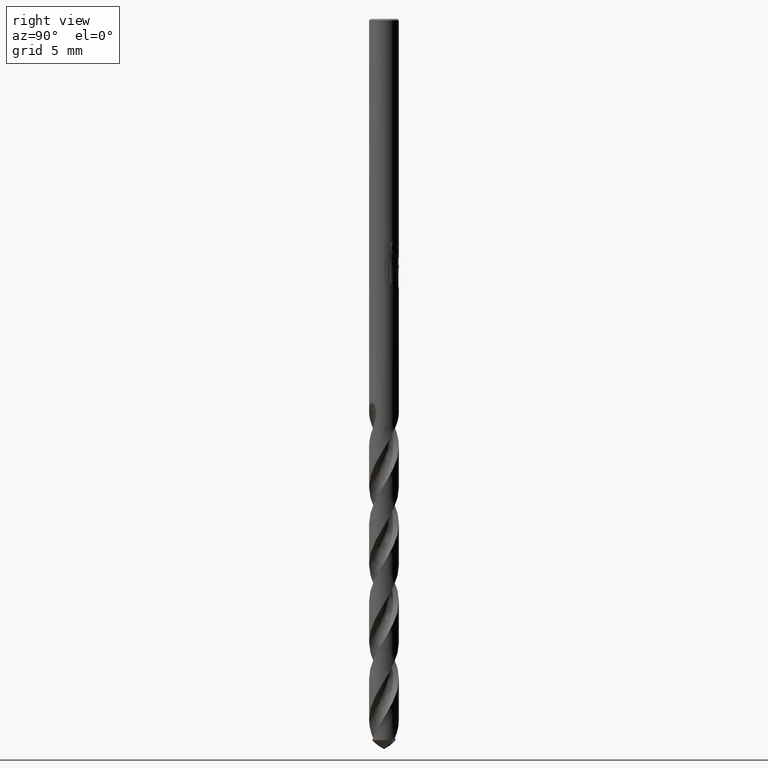
[diagram: clean part render]
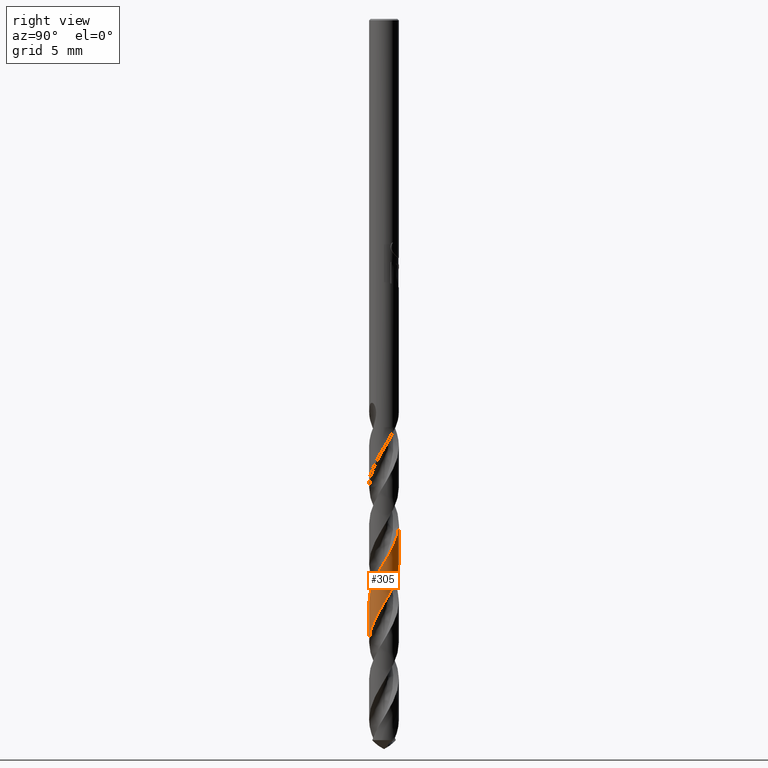
[diagram: same view with one face highlighted and labeled with its STEP entity id]
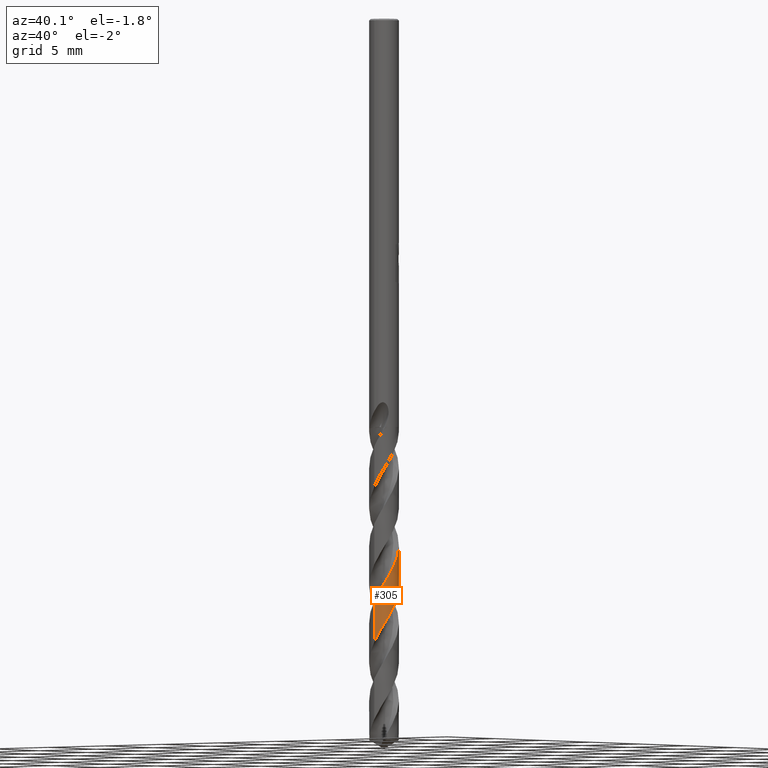
[diagram: same view with one face highlighted and labeled with its STEP entity id]
A machine part, right view. The second image highlights one B-rep face of the part: STEP entity #305.
A second angle (auxiliary view) of the same face is appended — the face is thin or edge-on in the first view.
In plain terms, the highlighted conical surface has half-angle 0 deg.
Its self-contained STEP definition (entity closure, byte-faithful):
#305=ADVANCED_FACE('',(#838),#839,.T.);
#349=EDGE_CURVE('',#419,#521,#887,.T.);
#419=VERTEX_POINT('',#963);
#521=VERTEX_POINT('',#1071);
#543=EDGE_CURVE('',#567,#521,#1096,.T.);
#545=VERTEX_POINT('',#1098);
#567=VERTEX_POINT('',#1122);
#613=EDGE_CURVE('',#419,#545,#1170,.T.);
#623=EDGE_CURVE('',#567,#545,#1180,.T.);
#838=FACE_OUTER_BOUND('',#1415,.T.);
#839=CONICAL_SURFACE('',#1416,0.99995,4.76209992157318E-006);
#887=B_SPLINE_CURVE_WITH_KNOTS('',3,(#2114,#2115,#2116,#2117,#2118,#2119,#2120,#2121,#2122,#2123,#2124,#2125,#2126,#2127,#2128,#2129,#2130,#2131,#2132,#2133,#2134,#2135,#2136,#2137,#2138,#2139,#2140,#2141,#2142,#2143,#2144,#2145,#2146,#2147,#2148,#2149,#2150,#2151,#2152,#2153,#2154,#2155,#2156,#2157,#2158,#2159,#2160,#2161,#2162,#2163,#2164,#2165,#2166,#2167,#2168,#2169,#2170,#2171,#2172,#2173,#2174,#2175,#2176,#2177,#2178,#2179,#2180,#2181,#2182,#2183,#2184,#2185,#2186,#2187,#2188,#2189,#2190,#2191,#2192,#2193,#2194,#2195,#2196,#2197,#2198,#2199,#2200,#2201,#2202,#2203,#2204,#2205,#2206,#2207,#2208,#2209,#2210,#2211,#2212,#2213,#2214,#2215,#2216,#2217,#2218,#2219,#2220,#2221,#2222,#2223,#2224,#2225,#2226,#2227,#2228,#2229,#2230,#2231,#2232,#2233,#2234,#2235,#2236,#2237,#2238,#2239,#2240,#2241,#2242,#2243,#2244,#2245,#2246,#2247,#2248,#2249,#2250,#2251,#2252,#2253,#2254,#2255,#2256,#2257,#2258,#2259,#2260,#2261,#2262,#2263,#2264,#2265,#2266,#2267,#2268,#2269,#2270,#2271,#2272,#2273,#2274,#2275),.UNSPECIFIED.,.F.,.F.,(4,2,2,2,2,2,2,2,2,2,2,2,2,2,2,2,2,2,2,2,2,2,2,2,2,2,2,2,2,2,2,2,2,2,2,2,2,2,2,2,2,2,2,2,2,2,2,2,2,2,2,2,2,2,2,2,2,2,2,2,2,2,2,2,2,2,2,2,2,2,2,2,2,2,2,2,2,2,2,2,4),(0.0,0.14056445565789,0.70591097276964,0.96913414407224,1.35393639490221,1.53594426473165,1.75308899507386,2.45448441391391,2.49523314449115,3.09830556356319,3.34016229741678,4.03058293586888,4.11538521270163,4.75953051353945,4.95781017869321,5.33016819058838,5.51299303691114,5.73848299923617,6.43810748119261,6.48001934676042,7.07575573852752,7.59217082503069,7.95721431112487,8.1574282753078,8.5306016233523,8.71438195715672,9.09848747242897,9.45959928978228,10.0113818150699,10.3773913943773,10.5676570043714,10.9532640893197,11.1367819856449,11.3497098997245,12.0661004696467,12.1064505335553,12.726093223443,13.1069669155192,13.4657956349338,13.9984171846253,14.3614655701048,14.5547068987883,14.931720620119,15.1141061051612,15.3324123963405,16.0361911712063,16.0772771579795,16.6808372688612,16.9232670663173,17.6134568395554,17.6988893198067,18.341618251319,18.5429116142774,18.9133920798893,19.0967366868528,19.48015514132,19.8383243826544,20.4003260823509,20.7656803249435,20.9518639090606,21.3422108349898,21.5251608299393,21.7342002215273,22.1053366182177,22.4338499458551,22.4534432325942,23.0081581119767,23.818086887952,23.9479202507916,24.0768839704688,24.1632713092801,24.253820072046,24.3949613482949,24.5084439207306,24.5931882163274,24.6441699712527,24.6899113798013,24.7480986676463,24.8668953882066,25.1214071149945,25.4279683467733),.UNSPECIFIED.);
#963=CARTESIAN_POINT('',(-9.09805265695658E-015,-0.999968680696698,-41.8223552276919));
#1071=CARTESIAN_POINT('',(-1.37668220737116E-012,0.999943911893829,-36.6211197901034));
#1096=LINE('',#3858,#3859);
#1098=CARTESIAN_POINT('',(2.15055975215677E-013,-0.999955628579478,-39.0815229403631));
#1122=CARTESIAN_POINT('',(-4.7796150428763E-015,0.999930863154706,-33.8809968741904));
#1170=LINE('',#4911,#4912);
#1180=B_SPLINE_CURVE_WITH_KNOTS('',3,(#4929,#4930,#4931,#4932,#4933,#4934,#4935,#4936,#4937,#4938,#4939,#4940,#4941,#4942,#4943,#4944,#4945,#4946,#4947,#4948,#4949,#4950,#4951,#4952,#4953,#4954,#4955,#4956,#4957,#4958,#4959,#4960,#4961,#4962,#4963,#4964,#4965,#4966,#4967,#4968,#4969,#4970,#4971,#4972,#4973,#4974,#4975,#4976,#4977,#4978,#4979,#4980,#4981,#4982,#4983,#4984,#4985,#4986,#4987,#4988,#4989,#4990,#4991,#4992,#4993,#4994,#4995,#4996,#4997,#4998,#4999,#5000,#5001,#5002,#5003,#5004,#5005,#5006,#5007,#5008,#5009,#5010,#5011,#5012,#5013,#5014,#5015,#5016,#5017,#5018,#5019,#5020,#5021,#5022,#5023,#5024,#5025,#5026,#5027,#5028,#5029,#5030,#5031,#5032,#5033,#5034,#5035,#5036,#5037,#5038,#5039,#5040,#5041,#5042,#5043,#5044,#5045,#5046,#5047,#5048,#5049,#5050,#5051,#5052,#5053,#5054,#5055,#5056,#5057,#5058,#5059,#5060,#5061,#5062,#5063,#5064,#5065,#5066,#5067,#5068,#5069,#5070,#5071,#5072,#5073,#5074,#5075,#5076,#5077,#5078,#5079,#5080,#5081,#5082,#5083,#5084,#5085,#5086,#5087,#5088,#5089,#5090,#5091,#5092,#5093,#5094,#5095,#5096,#5097,#5098,#5099,#5100,#5101,#5102,#5103,#5104,#5105,#5106,#5107,#5108,#5109,#5110,#5111,#5112,#5113,#5114,#5115,#5116,#5117,#5118,#5119,#5120,#5121,#5122,#5123,#5124,#5125,#5126,#5127,#5128,#5129,#5130,#5131,#5132,#5133,#5134,#5135,#5136),.UNSPECIFIED.,.F.,.F.,(4,2,2,2,2,2,2,2,2,2,2,2,2,2,2,2,2,2,2,2,2,2,2,2,2,2,2,2,2,2,2,2,2,2,2,2,2,2,2,2,2,2,2,2,2,2,2,2,2,2,2,2,2,2,2,2,2,2,2,2,2,2,2,2,2,2,2,2,2,2,2,2,2,2,2,2,2,2,2,2,2,2,2,2,2,2,2,2,2,2,2,2,2,2,2,2,2,2,2,2,2,2,2,4),(0.0,0.0700936707221039,0.0892226510524126,0.0981457889618549,0.103952079740004,0.108542523064671,0.1121372120472,0.114929148154714,0.117082761278986,0.118734677882819,0.11999605567832,0.120955781254254,0.121683948629849,0.122235228318834,0.244808956534025,0.273356692096325,0.288902881569685,0.301907756104808,0.317265629030893,0.344957792662925,0.379087246080634,0.424483927096996,0.565257880464543,0.630426924324464,0.679645659381287,0.733076229635632,0.762230183522066,0.835260987369624,1.00572168210188,1.16586772190873,1.18586198660844,1.52860473059939,1.57313578097863,2.03668948888539,2.22334419909769,2.45809738189729,2.94994949795201,3.25617852972792,3.82882204189987,3.9421811139424,4.36113180182372,4.53272234124149,4.8030365088131,5.30942518102981,5.57960125424549,6.13782805124241,6.36981611683585,6.95996496504684,7.01333123767605,7.40013656796781,7.75914312054048,7.78470812533843,8.16817645984559,8.52671430573193,8.5526162155846,8.92982451058583,9.28735404545879,9.3403601943133,9.72935595596873,9.90843376060782,10.2334074145805,10.79855179766,10.9129603506767,11.3259643297397,11.5042434462225,11.7778179351104,12.2838490735066,12.5527397111071,13.1096375043922,13.3416239297602,13.9304492898679,13.9837822566105,14.3695097319484,14.7278664707117,14.7534327605806,15.1354231703315,15.4932376348236,15.5191872452273,15.894238802144,16.2509181949413,16.3042204511424,16.6896128600539,17.0476980621844,17.0604981180586,17.431085650254,18.1507533693551,18.5014193346994,18.7488444866393,19.3177319725448,19.4300520475137,19.8481692411279,20.0188435776733,20.2886523667323,20.7940544165893,21.0619194951941,21.6192684944363,21.8500982765038,22.4371629598591,22.490011114667,22.8779652867805,23.4855014056219,23.7863425921628,23.9382248140074,24.0893070231674),.UNSPECIFIED.);
#1415=EDGE_LOOP('',(#8421,#8422,#8423,#8424));
#1416=AXIS2_PLACEMENT_3D('',#8425,#8426,#8427);
#2114=CARTESIAN_POINT('',(0.738484525051719,0.67427042517015,-48.3991393809724));
#2115=CARTESIAN_POINT('',(0.722199315005533,0.69210627256541,-48.35898905715));
#2116=CARTESIAN_POINT('',(0.705339529610617,0.70927645028774,-48.3187399679762));
#2117=CARTESIAN_POINT('',(0.61772978542461,0.79230819350698,-48.117561982592));
#2118=CARTESIAN_POINT('',(0.538168161692851,0.848412606628382,-47.9591542025126));
#2119=CARTESIAN_POINT('',(0.411158045886165,0.912681508742219,-47.7237100044493));
#2120=CARTESIAN_POINT('',(0.369552527325462,0.930297163590966,-47.6485890662762));
#2121=CARTESIAN_POINT('',(0.264753109744293,0.966557372480458,-47.4645833204485));
#2122=CARTESIAN_POINT('',(0.200442660016674,0.981927470895965,-47.3561282568962));
#2123=CARTESIAN_POINT('',(0.103973603421656,0.99506552730784,-47.1954615719139));
#2124=CARTESIAN_POINT('',(0.0728596298296801,0.997823310659706,-47.1439326218183));
#2125=CARTESIAN_POINT('',(0.00455217296671241,1.00067453909161,-47.0306717324577));
#2126=CARTESIAN_POINT('',(-0.0325771020062908,1.00014922136005,-46.9688059508543));
#2127=CARTESIAN_POINT('',(-0.188959270596308,0.989245724266842,-46.7084358859468));
#2128=CARTESIAN_POINT('',(-0.305707973679285,0.959572063556649,-46.5143929488935));
#2129=CARTESIAN_POINT('',(-0.420677671741312,0.907225690007042,-46.3040624505032));
#2130=CARTESIAN_POINT('',(-0.42695748454567,0.904287404632876,-46.2925092983668));
#2131=CARTESIAN_POINT('',(-0.526094394212668,0.856632316758312,-46.1094570126849));
#2132=CARTESIAN_POINT('',(-0.611614923219035,0.797865416588583,-45.9410527638497));
#2133=CARTESIAN_POINT('',(-0.716885875927187,0.698403557398639,-45.7014017591294));
#2134=CARTESIAN_POINT('',(-0.74515117271641,0.668149737055001,-45.6325083997187));
#2135=CARTESIAN_POINT('',(-0.846306494784768,0.545523237120698,-45.3684316947228));
#2136=CARTESIAN_POINT('',(-0.904506802091092,0.442318284594168,-45.1773920805992));
#2137=CARTESIAN_POINT('',(-0.948239372122956,0.317832728097969,-44.9579148437989));
#2138=CARTESIAN_POINT('',(-0.952722592307638,0.304131180416956,-44.9338834902299));
#2139=CARTESIAN_POINT('',(-0.988806638486166,0.185180527447617,-44.7272045356465));
#2140=CARTESIAN_POINT('',(-1.00316935284506,0.0755265524883106,-44.5482782947742));
#2141=CARTESIAN_POINT('',(-0.998226970862284,-0.0681871702245232,-44.3098118036178));
#2142=CARTESIAN_POINT('',(-0.995352948428464,-0.101858463015811,-44.2534818330394));
#2143=CARTESIAN_POINT('',(-0.982188357309189,-0.198224365779608,-44.0920147806841));
#2144=CARTESIAN_POINT('',(-0.967616208936157,-0.260266350797119,-43.9873997507171));
#2145=CARTESIAN_POINT('',(-0.937147242054429,-0.350272333079569,-43.8306007381079));
#2146=CARTESIAN_POINT('',(-0.925740547024811,-0.379387238482883,-43.7790329529404));
#2147=CARTESIAN_POINT('',(-0.897305876672282,-0.443033934575092,-43.6636070033417));
#2148=CARTESIAN_POINT('',(-0.879623674179221,-0.477164171920798,-43.5995999195292));
#2149=CARTESIAN_POINT('',(-0.799400228997613,-0.612416719327959,-43.3383914332129));
#2150=CARTESIAN_POINT('',(-0.721071718004035,-0.702911528027936,-43.1455100617795));
#2151=CARTESIAN_POINT('',(-0.623284373563109,-0.781994300890679,-42.9362034204142));
#2152=CARTESIAN_POINT('',(-0.617722209445156,-0.786395312308161,-42.9243818021478));
#2153=CARTESIAN_POINT('',(-0.532263640161825,-0.852546700144592,-42.7444772791604));
#2154=CARTESIAN_POINT('',(-0.443407955405667,-0.902002265088583,-42.5792834357539));
#2155=CARTESIAN_POINT('',(-0.266037092518991,-0.967928801220409,-42.2663299029848));
#2156=CARTESIAN_POINT('',(-0.17998319592453,-0.987567810702578,-42.1202672195336));
#2157=CARTESIAN_POINT('',(-0.0304203672656244,-1.00143992417476,-41.872291290926));
#2158=CARTESIAN_POINT('',(0.03182013309655,-1.00138324195016,-41.7702306339909));
#2159=CARTESIAN_POINT('',(0.127404571009455,-0.99240101454739,-41.6110304808694));
#2160=CARTESIAN_POINT('',(0.161001952154069,-0.987504811045719,-41.5544368087741));
#2161=CARTESIAN_POINT('',(0.256375752508883,-0.968611789569419,-41.3930194002599));
#2162=CARTESIAN_POINT('',(0.317260394568083,-0.950429406199576,-41.2887059540017));
#2163=CARTESIAN_POINT('',(0.405134207396172,-0.914754835637657,-41.1322107267236));
#2164=CARTESIAN_POINT('',(0.43352579619741,-0.901643038219326,-41.0806386858905));
#2165=CARTESIAN_POINT('',(0.519112548098958,-0.857150916854884,-40.9209265307274));
#2166=CARTESIAN_POINT('',(0.573913676388291,-0.821474161922404,-40.8122508326467));
#2167=CARTESIAN_POINT('',(0.67287342154379,-0.742253501992499,-40.6026327408082));
#2168=CARTESIAN_POINT('',(0.717185298478098,-0.699530891447163,-40.5017153375671));
#2169=CARTESIAN_POINT('',(0.818594917257573,-0.581923513485381,-40.2449868081743));
#2170=CARTESIAN_POINT('',(0.869588932997187,-0.502561272606847,-40.0890846901827));
#2171=CARTESIAN_POINT('',(0.934797764252629,-0.360496236556938,-39.8310714500225));
#2172=CARTESIAN_POINT('',(0.95539635375939,-0.301645888917394,-39.7288079791282));
#2173=CARTESIAN_POINT('',(0.978175616139704,-0.210071752243354,-39.5722045940728));
#2174=CARTESIAN_POINT('',(0.984435954087485,-0.178446881723846,-39.5184612936004));
#2175=CARTESIAN_POINT('',(0.998750605745696,-0.0817991899895452,-39.3563059081362));
#2176=CARTESIAN_POINT('',(1.0019800123401,-0.0161857991555126,-39.2485416942115));
#2177=CARTESIAN_POINT('',(0.997189948450858,0.0806253152857407,-39.0885711076884));
#2178=CARTESIAN_POINT('',(0.994184818873023,0.111707745789932,-39.0370511860568));
#2179=CARTESIAN_POINT('',(0.984586582431882,0.178343805778372,-38.9254984944325));
#2180=CARTESIAN_POINT('',(0.9775081966054,0.213743061282207,-38.8653492674655));
#2181=CARTESIAN_POINT('',(0.938388530682276,0.366114576040505,-38.6040953859903));
#2182=CARTESIAN_POINT('',(0.887185988468581,0.47688555253783,-38.4076231485188));
#2183=CARTESIAN_POINT('',(0.813663011553996,0.581293110208322,-38.1948754528206));
#2184=CARTESIAN_POINT('',(0.809664940112527,0.586849884004678,-38.1834785203497));
#2185=CARTESIAN_POINT('',(0.742953501895324,0.677567789479676,-37.9961451934972));
#2186=CARTESIAN_POINT('',(0.667170127355215,0.75233900063941,-37.8235785857457));
#2187=CARTESIAN_POINT('',(0.527891859243714,0.851745197859918,-37.5401925040478));
#2188=CARTESIAN_POINT('',(0.471290077225483,0.884330346077322,-37.43166220131));
#2189=CARTESIAN_POINT('',(0.355793556225644,0.936528002264029,-37.2221018130954));
#2190=CARTESIAN_POINT('',(0.297559352489693,0.956624200491764,-37.1211017536281));
#2191=CARTESIAN_POINT('',(0.149224661068113,0.992949093037853,-36.8685824039991));
#2192=CARTESIAN_POINT('',(0.0580332580998433,1.00243155088458,-36.716968575955));
#2193=CARTESIAN_POINT('',(-0.0955285145847704,0.997316038280177,-36.463333323144));
#2194=CARTESIAN_POINT('',(-0.157330287758926,0.989435553023536,-36.3611582462013));
#2195=CARTESIAN_POINT('',(-0.250122852019267,0.968717309519225,-36.2034261052396));
#2196=CARTESIAN_POINT('',(-0.28191674258436,0.9599455915192,-36.1484432690436));
#2197=CARTESIAN_POINT('',(-0.374408548305531,0.92943326510584,-35.9867705177433));
#2198=CARTESIAN_POINT('',(-0.433579461536613,0.903365550211232,-35.8806626691293));
#2199=CARTESIAN_POINT('',(-0.51720179967553,0.856364249117174,-35.722358008913));
#2200=CARTESIAN_POINT('',(-0.54369508449296,0.839790037527465,-35.6708100537992));
#2201=CARTESIAN_POINT('',(-0.600027819956577,0.800773462952367,-35.5573054969542));
#2202=CARTESIAN_POINT('',(-0.62943260159427,0.777865612438556,-35.4952155089192));
#2203=CARTESIAN_POINT('',(-0.747792540115457,0.674578807462919,-35.2342957836257));
#2204=CARTESIAN_POINT('',(-0.823070975776752,0.580281690659116,-35.0399176712884));
#2205=CARTESIAN_POINT('',(-0.883198660213199,0.468913236743944,-34.82918119726));
#2206=CARTESIAN_POINT('',(-0.886449141756689,0.462739287936914,-34.8175535439187));
#2207=CARTESIAN_POINT('',(-0.936630684732596,0.364942716473726,-34.6346153224461));
#2208=CARTESIAN_POINT('',(-0.969262488402772,0.266568633351018,-34.4663941144745));
#2209=CARTESIAN_POINT('',(-0.993103220057652,0.123818698172413,-34.2269019267329));
#2210=CARTESIAN_POINT('',(-0.997366797147269,0.0826177564337915,-34.1579779492285));
#2211=CARTESIAN_POINT('',(-1.00393614571111,-0.0759471663644909,-33.8943163871893));
#2212=CARTESIAN_POINT('',(-0.988091065180016,-0.193087090781373,-33.7036903641475));
#2213=CARTESIAN_POINT('',(-0.947933272231209,-0.318576659604877,-33.4845350568757));
#2214=CARTESIAN_POINT('',(-0.943217320042621,-0.332279991585394,-33.4603749877339));
#2215=CARTESIAN_POINT('',(-0.900368314421522,-0.448492234080022,-33.2544095862178));
#2216=CARTESIAN_POINT('',(-0.84598339311854,-0.54419397865451,-33.0762679692784));
#2217=CARTESIAN_POINT('',(-0.755527475776438,-0.655900282862461,-32.8379326651721));
#2218=CARTESIAN_POINT('',(-0.732649410556051,-0.681356629482545,-32.780882273363));
#2219=CARTESIAN_POINT('',(-0.66406524610244,-0.750221934156375,-32.6195096152458));
#2220=CARTESIAN_POINT('',(-0.61542406312346,-0.790633791473274,-32.5156788614936));
#2221=CARTESIAN_POINT('',(-0.537301385522973,-0.84388036058982,-32.3596691664868));
#2222=CARTESIAN_POINT('',(-0.510656639649481,-0.860262403139397,-32.3080898014199));
#2223=CARTESIAN_POINT('',(-0.426163341126834,-0.906914203031319,-32.1482938895246));
#2224=CARTESIAN_POINT('',(-0.366069377083413,-0.932797581071457,-32.0395425482468));
#2225=CARTESIAN_POINT('',(-0.245600393098699,-0.971211720260319,-31.830427794048));
#2226=CARTESIAN_POINT('',(-0.185839067969411,-0.984396172736055,-31.7300777217282));
#2227=CARTESIAN_POINT('',(-0.0301548950520787,-1.00404918144344,-31.470672361821));
#2228=CARTESIAN_POINT('',(0.0661681780438373,-1.00233027324072,-31.3115219191209));
#2229=CARTESIAN_POINT('',(0.222436670050521,-0.976856061715043,-31.0501951006154));
#2230=CARTESIAN_POINT('',(0.28279845024759,-0.961101920537793,-30.9478690798692));
#2231=CARTESIAN_POINT('',(0.370937079396241,-0.929107043387269,-30.7922112253773));
#2232=CARTESIAN_POINT('',(0.400117261534381,-0.916919522399161,-30.7394947220877));
#2233=CARTESIAN_POINT('',(0.488732270659779,-0.874860943962878,-30.5767023481292));
#2234=CARTESIAN_POINT('',(0.545844674939355,-0.840432044940329,-30.467326905336));
#2235=CARTESIAN_POINT('',(0.624217606821073,-0.781764724620899,-30.3057259996766));
#2236=CARTESIAN_POINT('',(0.648298798662182,-0.761909423814354,-30.2542178455269));
#2237=CARTESIAN_POINT('',(0.697752990038314,-0.71710070790776,-30.143600529354));
#2238=CARTESIAN_POINT('',(0.722773690916187,-0.691870387361776,-30.0843837234173));
#2239=CARTESIAN_POINT('',(0.788351913177426,-0.618303934195706,-29.9207684021138));
#2240=CARTESIAN_POINT('',(0.825839362897852,-0.567292166852439,-29.816856415941));
#2241=CARTESIAN_POINT('',(0.887062954630546,-0.464844872811991,-29.6199221418904));
#2242=CARTESIAN_POINT('',(0.911608580917182,-0.41458952082144,-29.5278679868214));
#2243=CARTESIAN_POINT('',(0.932992508054443,-0.359660014357997,-29.4296131366715));
#2244=CARTESIAN_POINT('',(0.934180403004281,-0.356563255154051,-29.4240821634973));
#2245=CARTESIAN_POINT('',(0.968690316231934,-0.265234574855678,-29.261377799237));
#2246=CARTESIAN_POINT('',(0.989480922632789,-0.172497299841858,-29.1064073969398));
#2247=CARTESIAN_POINT('',(1.00766282174835,0.060327398794362,-28.7211296929282));
#2248=CARTESIAN_POINT('',(0.989574811462635,0.198481394935991,-28.4919473671374));
#2249=CARTESIAN_POINT('',(0.937303445890006,0.348933175182968,-28.2297366693596));
#2250=CARTESIAN_POINT('',(0.929361792944556,0.369578861476745,-28.1935796946531));
#2251=CARTESIAN_POINT('',(0.912073854203633,0.410385034756774,-28.1216485259679));
#2252=CARTESIAN_POINT('',(0.903203002163905,0.42950170384403,-28.0879371326771));
#2253=CARTESIAN_POINT('',(0.887485071930835,0.460840609089884,-28.031290623029));
#2254=CARTESIAN_POINT('',(0.88096495145962,0.473178670209299,-28.0085395841339));
#2255=CARTESIAN_POINT('',(0.867209237617541,0.497959722788603,-27.9617184523038));
#2256=CARTESIAN_POINT('',(0.859974068411012,0.510343564911001,-27.937704677608));
#2257=CARTESIAN_POINT('',(0.841028669350548,0.541260792472902,-27.875888409676));
#2258=CARTESIAN_POINT('',(0.829146505134924,0.559251373959732,-27.83810273624));
#2259=CARTESIAN_POINT('',(0.807285416021379,0.5902367506664,-27.7690511450417));
#2260=CARTESIAN_POINT('',(0.800550457767415,0.599152283230986,-27.7476477587425));
#2261=CARTESIAN_POINT('',(0.792278890964609,0.610025696754591,-27.7222077806351));
#2262=CARTESIAN_POINT('',(0.788636157997076,0.614729878269019,-27.7114010841817));
#2263=CARTESIAN_POINT('',(0.782613590035992,0.622360114690086,-27.6941853159607));
#2264=CARTESIAN_POINT('',(0.780310284974517,0.625246000486994,-27.6877437769059));
#2265=CARTESIAN_POINT('',(0.77585842566012,0.630759517233334,-27.675566595699));
#2266=CARTESIAN_POINT('',(0.773719061677534,0.633382256744531,-27.6698285397106));
#2267=CARTESIAN_POINT('',(0.768777663973985,0.639376474481037,-27.6568351505325));
#2268=CARTESIAN_POINT('',(0.76595496148876,0.642755993385237,-27.6495950799344));
#2269=CARTESIAN_POINT('',(0.757190318726065,0.653106328973748,-27.6276713572916));
#2270=CARTESIAN_POINT('',(0.751070474763906,0.660141283817371,-27.6131109856839));
#2271=CARTESIAN_POINT('',(0.73102951849354,0.682507629494209,-27.5677830196951));
#2272=CARTESIAN_POINT('',(0.716266820841374,0.698045409524846,-27.5376906864236));
#2273=CARTESIAN_POINT('',(0.680929713284039,0.732712075430635,-27.4726971304267));
#2274=CARTESIAN_POINT('',(0.65997436780235,0.751736979062994,-27.4384242408221));
#2275=CARTESIAN_POINT('',(0.637187381357094,0.770579196874355,-27.405));
#3858=CARTESIAN_POINT('',(-1.22336719948997E-016,0.99995,-37.8995696904862));
#3859=VECTOR('',#8667,1.0);
#4911=CARTESIAN_POINT('',(1.2257230475194E-016,-0.99995,-37.8995696904862));
#4912=VECTOR('',#8737,1.0);
#4929=CARTESIAN_POINT('',(0.695006639413528,-0.71886426311742,-27.405));
#4930=CARTESIAN_POINT('',(0.6867539167669,-0.726843229699834,-27.4253502132832));
#4931=CARTESIAN_POINT('',(0.678323015204907,-0.73472057349415,-27.4457087372864));
#4932=CARTESIAN_POINT('',(0.667299952432495,-0.74466206663105,-27.4716005979875));
#4933=CARTESIAN_POINT('',(0.664921790338882,-0.746786438464977,-27.4771456817983));
#4934=CARTESIAN_POINT('',(0.661409255262406,-0.74989388885913,-27.4852733811543));
#4935=CARTESIAN_POINT('',(0.66028850734931,-0.750880929222943,-27.4878575092543));
#4936=CARTESIAN_POINT('',(0.658432427043976,-0.752508188070589,-27.4921217399679));
#4937=CARTESIAN_POINT('',(0.657699276514912,-0.753149065458815,-27.4938021799465));
#4938=CARTESIAN_POINT('',(0.656383715995427,-0.754295660210343,-27.4968104644096));
#4939=CARTESIAN_POINT('',(0.6558019179963,-0.754801552831862,-27.4981383901839));
#4940=CARTESIAN_POINT('',(0.654762789180435,-0.755702998563045,-27.5005057279993));
#4941=CARTESIAN_POINT('',(0.65430584931721,-0.756098669699211,-27.5015452073041));
#4942=CARTESIAN_POINT('',(0.653492949821616,-0.756801281567112,-27.5033917412083));
#4943=CARTESIAN_POINT('',(0.653137234224654,-0.75710829909158,-27.5041988453584));
#4944=CARTESIAN_POINT('',(0.652506491581168,-0.757651916021034,-27.5056283442978));
#4945=CARTESIAN_POINT('',(0.652231613800073,-0.757888564008378,-27.5062507731655));
#4946=CARTESIAN_POINT('',(0.651745513198321,-0.758306597494941,-27.50735052324));
#4947=CARTESIAN_POINT('',(0.651534380217639,-0.758488012952041,-27.5078278666085));
#4948=CARTESIAN_POINT('',(0.651161806588943,-0.758807875374403,-27.5086696367514));
#4949=CARTESIAN_POINT('',(0.651000419246315,-0.75894634048454,-27.5090340775052));
#4950=CARTESIAN_POINT('',(0.650716109846162,-0.759190111265263,-27.5096757664154));
#4951=CARTESIAN_POINT('',(0.650593219118681,-0.759295427714321,-27.509953023047));
#4952=CARTESIAN_POINT('',(0.650377013193479,-0.759480623548799,-27.5104406186895));
#4953=CARTESIAN_POINT('',(0.650283716155386,-0.759560509340228,-27.5106509629534));
#4954=CARTESIAN_POINT('',(0.650119742837041,-0.759700859482565,-27.5110205413104));
#4955=CARTESIAN_POINT('',(0.650049077234908,-0.759761327411597,-27.511179778098));
#4956=CARTESIAN_POINT('',(0.63426319802145,-0.7732653489429,-27.5467434080565));
#4957=CARTESIAN_POINT('',(0.618091721233083,-0.786268234282502,-27.5813691538356));
#4958=CARTESIAN_POINT('',(0.597112869557044,-0.802049225552477,-27.6243469517543));
#4959=CARTESIAN_POINT('',(0.593118582105054,-0.805007721578158,-27.6324500303555));
#4960=CARTESIAN_POINT('',(0.586895794781378,-0.809544959482304,-27.6449629053752));
#4961=CARTESIAN_POINT('',(0.584692888701598,-0.811137484503,-27.6493714128833));
#4962=CARTESIAN_POINT('',(0.5806300181147,-0.814049401454583,-27.6574659828519));
#4963=CARTESIAN_POINT('',(0.578773428979219,-0.815370477905219,-27.6611512050814));
#4964=CARTESIAN_POINT('',(0.574710915183732,-0.818240301667663,-27.6691871524785));
#4965=CARTESIAN_POINT('',(0.572503308008649,-0.819786468026039,-27.6735361711819));
#4966=CARTESIAN_POINT('',(0.566292602881519,-0.824098947186257,-27.6857260027231));
#4967=CARTESIAN_POINT('',(0.56227473991958,-0.826845598463558,-27.6935594590142));
#4968=CARTESIAN_POINT('',(0.553253988305106,-0.832915979018801,-27.7110526785299));
#4969=CARTESIAN_POINT('',(0.54824615296695,-0.836220779750787,-27.7207002484619));
#4970=CARTESIAN_POINT('',(0.536512936340054,-0.84381324484399,-27.7432048698752));
#4971=CARTESIAN_POINT('',(0.529787962995922,-0.848052427418606,-27.7560441851294));
#4972=CARTESIAN_POINT('',(0.501649246863923,-0.865317924109988,-27.8097335468741));
#4973=CARTESIAN_POINT('',(0.480027388185764,-0.877487083063623,-27.8507251089592));
#4974=CARTESIAN_POINT('',(0.448028556980747,-0.893982697157558,-27.9105244663175));
#4975=CARTESIAN_POINT('',(0.437823760095649,-0.89902429666986,-27.9294722045468));
#4976=CARTESIAN_POINT('',(0.419782952593696,-0.907557922055957,-27.962715071888));
#4977=CARTESIAN_POINT('',(0.411972758613635,-0.911129908571011,-27.9770246067925));
#4978=CARTESIAN_POINT('',(0.395589308549022,-0.918369103896604,-28.0068562455626));
#4979=CARTESIAN_POINT('',(0.387003304519513,-0.922020362985836,-28.0223857661845));
#4980=CARTESIAN_POINT('',(0.373645491490037,-0.927481086100269,-28.0463750295915));
#4981=CARTESIAN_POINT('',(0.368912419399037,-0.929373923658727,-28.0548424615839));
#4982=CARTESIAN_POINT('',(0.352262386851416,-0.935885140994734,-28.0845121112567));
#4983=CARTESIAN_POINT('',(0.340259280251447,-0.940315969723096,-28.1056920511353));
#4984=CARTESIAN_POINT('',(0.299955542500912,-0.95431980701467,-28.1763002338589));
#4985=CARTESIAN_POINT('',(0.271298246774338,-0.962860047689832,-28.2256351193464));
#4986=CARTESIAN_POINT('',(0.215025468136377,-0.976914638999224,-28.3214634848851));
#4987=CARTESIAN_POINT('',(0.187520090519058,-0.982563819633614,-28.3678331633304));
#4988=CARTESIAN_POINT('',(0.156385422200644,-0.987605983938193,-28.4200878338223));
#4989=CARTESIAN_POINT('',(0.152925982227539,-0.988147603983438,-28.4258901622899));
#4990=CARTESIAN_POINT('',(0.0901077502187661,-0.997644724257533,-28.5311712169166));
#4991=CARTESIAN_POINT('',(0.0300264003536538,-1.00126029158352,-28.6305722486033));
#4992=CARTESIAN_POINT('',(-0.0378516377039692,-0.999220209031713,-28.7429434663719));
#4993=CARTESIAN_POINT('',(-0.0456524551542638,-0.998894259382891,-28.7558576504238));
#4994=CARTESIAN_POINT('',(-0.134612599110606,-0.994132846655195,-28.9032741593629));
#4995=CARTESIAN_POINT('',(-0.214964170559909,-0.979905881389224,-29.0375734788267));
#4996=CARTESIAN_POINT('',(-0.324004063988334,-0.946525438872831,-29.2262523185807));
#4997=CARTESIAN_POINT('',(-0.354820347059478,-0.935410397440378,-29.2803641571788));
#4998=CARTESIAN_POINT('',(-0.423045641940208,-0.906943991939585,-29.4026367861845));
#4999=CARTESIAN_POINT('',(-0.460005383609471,-0.888766477389961,-29.4706688068164));
#5000=CARTESIAN_POINT('',(-0.570545282846936,-0.825665381407708,-29.6816282744517));
#5001=CARTESIAN_POINT('',(-0.639602600280536,-0.773420348589653,-29.8239649522809));
#5002=CARTESIAN_POINT('',(-0.739439527852694,-0.675234309241595,-30.0555632317621));
#5003=CARTESIAN_POINT('',(-0.7746230449532,-0.634559193979897,-30.1441952894886));
#5004=CARTESIAN_POINT('',(-0.865702172796804,-0.510352364491411,-30.3993845757003));
#5005=CARTESIAN_POINT('',(-0.912565874125253,-0.420892055294747,-30.5647266019774));
#5006=CARTESIAN_POINT('',(-0.951799080977912,-0.307093154329953,-30.7638236339136));
#5007=CARTESIAN_POINT('',(-0.957716592142062,-0.288108312228244,-30.7967031860688));
#5008=CARTESIAN_POINT('',(-0.982824500007853,-0.198208485870714,-30.951264626159));
#5009=CARTESIAN_POINT('',(-0.994733752500956,-0.125465952269566,-31.0727953937115));
#5010=CARTESIAN_POINT('',(-1.00012926132423,-0.0220058085987998,-31.2442705890861));
#5011=CARTESIAN_POINT('',(-1.0003391201766,0.00811977991695677,-31.2940537458907));
#5012=CARTESIAN_POINT('',(-0.997375026736421,0.0856315282943342,-31.4223420183789));
#5013=CARTESIAN_POINT('',(-0.992190988794393,0.132822120993255,-31.500670473987));
#5014=CARTESIAN_POINT('',(-0.967757211272657,0.266773116465918,-31.7262874331576));
#5015=CARTESIAN_POINT('',(-0.940254798362267,0.351662422488403,-31.8728099268939));
#5016=CARTESIAN_POINT('',(-0.881378461450338,0.474622385102742,-32.0982829488459));
#5017=CARTESIAN_POINT('',(-0.857892022716568,0.515859117743129,-32.1765843899905));
#5018=CARTESIAN_POINT('',(-0.777240614603024,0.636650498894887,-32.4172511405306));
#5019=CARTESIAN_POINT('',(-0.711193146060438,0.709689805910593,-32.5785841690478));
#5020=CARTESIAN_POINT('',(-0.604080004347686,0.797870842790519,-32.8080425639483));
#5021=CARTESIAN_POINT('',(-0.57110529990159,0.821793944471808,-32.8753488309778));
#5022=CARTESIAN_POINT('',(-0.449492350418361,0.899175823814714,-33.114209625512));
#5023=CARTESIAN_POINT('',(-0.354038446411886,0.940875675334575,-33.2845707544435));
#5024=CARTESIAN_POINT('',(-0.244764202127637,0.969554584823029,-33.4714362945785));
#5025=CARTESIAN_POINT('',(-0.235671770410264,0.971804776820096,-33.486928373849));
#5026=CARTESIAN_POINT('',(-0.16042562480568,0.989308701719376,-33.6147883364104));
#5027=CARTESIAN_POINT('',(-0.0929163612957884,0.997914884742434,-33.7271120598197));
#5028=CARTESIAN_POINT('',(0.0379185538720128,1.0011959744985,-33.9438175922112));
#5029=CARTESIAN_POINT('',(0.100924789222605,0.996820689500021,-34.0477665701454));
#5030=CARTESIAN_POINT('',(0.167548878757447,0.98580520801825,-34.1594739114875));
#5031=CARTESIAN_POINT('',(0.171971751178129,0.98504330337546,-34.1668992662661));
#5032=CARTESIAN_POINT('',(0.242646813602282,0.972378109451577,-34.2857247494533));
#5033=CARTESIAN_POINT('',(0.307525354391323,0.953846759878425,-34.3970979689961));
#5034=CARTESIAN_POINT('',(0.428498934999351,0.905658034248506,-34.6127230110456));
#5035=CARTESIAN_POINT('',(0.484644435332005,0.87690031315845,-34.7165528541915));
#5036=CARTESIAN_POINT('',(0.541565994895066,0.840593669608506,-34.8282326956027));
#5037=CARTESIAN_POINT('',(0.545383591234717,0.838121859401668,-34.8357559537689));
#5038=CARTESIAN_POINT('',(0.604540134628774,0.799243942265068,-34.9528914020119));
#5039=CARTESIAN_POINT('',(0.656130617547449,0.757462777134299,-35.0624910749506));
#5040=CARTESIAN_POINT('',(0.747823940339937,0.666763164376543,-35.2760719662608));
#5041=CARTESIAN_POINT('',(0.788205749176034,0.618508584382244,-35.3796515558071));
#5042=CARTESIAN_POINT('',(0.829085108770131,0.55909009753547,-35.4989458895298));
#5043=CARTESIAN_POINT('',(0.834254216594521,0.551347307680617,-35.514344143316));
#5044=CARTESIAN_POINT('',(0.876450902152232,0.486189058371658,-35.6428258705127));
#5045=CARTESIAN_POINT('',(0.907609139901144,0.425195954355499,-35.755858349831));
#5046=CARTESIAN_POINT('',(0.943675227258428,0.332185446064972,-35.9210320213788));
#5047=CARTESIAN_POINT('',(0.953659203503178,0.302334542985541,-35.9730573124014));
#5048=CARTESIAN_POINT('',(0.977759706475231,0.21709570054693,-36.1195754981625));
#5049=CARTESIAN_POINT('',(0.988551194441707,0.16094780194385,-36.2137665073149));
#5050=CARTESIAN_POINT('',(1.00483612901874,0.0055599896470904,-36.4726540406652));
#5051=CARTESIAN_POINT('',(1.00044428730259,-0.0941633502878821,-36.6361248000908));
#5052=CARTESIAN_POINT('',(0.977551424041915,-0.211394088561395,-36.8336701473947));
#5053=CARTESIAN_POINT('',(0.97310461914337,-0.231000967320976,-36.8669057112521));
#5054=CARTESIAN_POINT('',(0.949900688690117,-0.320692101087583,-37.0202916100646));
#5055=CARTESIAN_POINT('',(0.924134386931217,-0.388761075988906,-37.1403090671726));
#5056=CARTESIAN_POINT('',(0.87702010759575,-0.481364226949301,-37.31228535881));
#5057=CARTESIAN_POINT('',(0.861506209141907,-0.508610364713224,-37.3640923383193));
#5058=CARTESIAN_POINT('',(0.818993485047112,-0.575725204537023,-37.4954853487212));
#5059=CARTESIAN_POINT('',(0.790374649941932,-0.614420533942598,-37.5748847107457));
#5060=CARTESIAN_POINT('',(0.701265753340284,-0.718346160418788,-37.801718208084));
#5061=CARTESIAN_POINT('',(0.634647311563809,-0.777844131361031,-37.9483755135349));
#5062=CARTESIAN_POINT('',(0.521844090876335,-0.854293344823559,-38.1737412390982));
#5063=CARTESIAN_POINT('',(0.480898765734702,-0.877991874235009,-38.2517990940274));
#5064=CARTESIAN_POINT('',(0.350558562520167,-0.941583643243189,-38.4921007278412));
#5065=CARTESIAN_POINT('',(0.256773647175147,-0.971373649516903,-38.6533170167116));
#5066=CARTESIAN_POINT('',(0.11982441251392,-0.993587452213073,-38.8827660119594));
#5067=CARTESIAN_POINT('',(0.079219869738825,-0.997644292201213,-38.9501818840737));
#5068=CARTESIAN_POINT('',(-0.0648261644849267,-1.00319673106208,-39.1890503370281));
#5069=CARTESIAN_POINT('',(-0.168228789993437,-0.991128107573557,-39.359311766948));
#5070=CARTESIAN_POINT('',(-0.277023715014424,-0.96086497817606,-39.5460903446881));
#5071=CARTESIAN_POINT('',(-0.286021088161948,-0.958225277539961,-39.5615982346348));
#5072=CARTESIAN_POINT('',(-0.359775745797333,-0.935455551682665,-39.6893449631456));
#5073=CARTESIAN_POINT('',(-0.422359870660567,-0.908915400859221,-39.8015409222256));
#5074=CARTESIAN_POINT('',(-0.536970220203288,-0.845902399862809,-40.0181005095468));
#5075=CARTESIAN_POINT('',(-0.589193293333625,-0.810398250270582,-40.1220328156674));
#5076=CARTESIAN_POINT('',(-0.641205469291123,-0.767331740587408,-40.2337350878656));
#5077=CARTESIAN_POINT('',(-0.644648846067376,-0.764441220149908,-40.2411728745512));
#5078=CARTESIAN_POINT('',(-0.699226287757172,-0.717995664153565,-40.3597685533849));
#5079=CARTESIAN_POINT('',(-0.745854943152365,-0.669428288152092,-40.4709013818945));
#5080=CARTESIAN_POINT('',(-0.826044464813908,-0.567039414907533,-40.6862499999989));
#5081=CARTESIAN_POINT('',(-0.860083049563421,-0.513952334982857,-40.7900466223927));
#5082=CARTESIAN_POINT('',(-0.89100489150343,-0.453938010702731,-40.9017179495658));
#5083=CARTESIAN_POINT('',(-0.893067584563079,-0.449866417050237,-40.9092677630801));
#5084=CARTESIAN_POINT('',(-0.924514737811508,-0.386723491883106,-41.0259860538328));
#5085=CARTESIAN_POINT('',(-0.948002776301238,-0.324916271507794,-41.1351460392599));
#5086=CARTESIAN_POINT('',(-0.981619605440354,-0.200721653444601,-41.3482131852148));
#5087=CARTESIAN_POINT('',(-0.992281054976373,-0.138752127184079,-41.4517238443938));
#5088=CARTESIAN_POINT('',(-0.997777090260588,-0.0668119530996915,-41.5710579273947));
#5089=CARTESIAN_POINT('',(-0.998359821590638,-0.0574519454708914,-41.5865681362642));
#5090=CARTESIAN_POINT('',(-1.00207185175956,0.0196408255034234,-41.7143010256262));
#5091=CARTESIAN_POINT('',(-0.998436031455004,0.0875135737956719,-41.8264810025774));
#5092=CARTESIAN_POINT('',(-0.978231988248836,0.216723741651355,-42.043021127673));
#5093=CARTESIAN_POINT('',(-0.962640000814666,0.277916199596794,-42.1469501651903));
#5094=CARTESIAN_POINT('',(-0.940623063136457,0.339374146866539,-42.2549373984384));
#5095=CARTESIAN_POINT('',(-0.9398561699722,0.341492275080124,-42.2586638107708));
#5096=CARTESIAN_POINT('',(-0.916667683873635,0.404868010088771,-42.3703148914843));
#5097=CARTESIAN_POINT('',(-0.888320268965315,0.463768562862268,-42.4782440163396));
#5098=CARTESIAN_POINT('',(-0.788680158351291,0.627662410849319,-42.7958898221054));
#5099=CARTESIAN_POINT('',(-0.702958179527225,0.722370339510449,-43.0033569174076));
#5100=CARTESIAN_POINT('',(-0.55263087603403,0.835675974024626,-43.3152048190187));
#5101=CARTESIAN_POINT('',(-0.500022474064822,0.868183760411514,-43.417080988301));
#5102=CARTESIAN_POINT('',(-0.405692473010748,0.915022469780636,-43.5912520164563));
#5103=CARTESIAN_POINT('',(-0.365473265412547,0.931814023359411,-43.6632108663589));
#5104=CARTESIAN_POINT('',(-0.229681003742024,0.978372147012317,-43.9010697822444));
#5105=CARTESIAN_POINT('',(-0.130640911364021,0.99645752658566,-44.0658968106567));
#5106=CARTESIAN_POINT('',(-0.0107381004318378,1.00011825839134,-44.264286748753));
#5107=CARTESIAN_POINT('',(0.00903581954179666,1.00013497873802,-44.2969774083113));
#5108=CARTESIAN_POINT('',(0.102342647257152,0.997447914877347,-44.4515289129069));
#5109=CARTESIAN_POINT('',(0.175457945843269,0.987216707357348,-44.5732393868469));
#5110=CARTESIAN_POINT('',(0.275912131409513,0.961634333911338,-44.7448016282447));
#5111=CARTESIAN_POINT('',(0.304689788664032,0.952908019835646,-44.7944916374907));
#5112=CARTESIAN_POINT('',(0.377852793498493,0.927066898661764,-44.922812897412));
#5113=CARTESIAN_POINT('',(0.42144942489352,0.908075483350386,-45.0012682582562));
#5114=CARTESIAN_POINT('',(0.542294574759518,0.844862113047732,-45.2272364962007));
#5115=CARTESIAN_POINT('',(0.615292599043099,0.793293350575526,-45.3739783355584));
#5116=CARTESIAN_POINT('',(0.715111402174374,0.700582659151278,-45.5992746133702));
#5117=CARTESIAN_POINT('',(0.74734769962258,0.666083174026898,-45.6771779062657));
#5118=CARTESIAN_POINT('',(0.838745014277753,0.553263008966347,-45.9177521092457));
#5119=CARTESIAN_POINT('',(0.888977301823141,0.468338346655265,-46.079387890771));
#5120=CARTESIAN_POINT('',(0.941389171588509,0.33973612851929,-46.3090522980039));
#5121=CARTESIAN_POINT('',(0.954415541126849,0.301199651829536,-46.3762576388309));
#5122=CARTESIAN_POINT('',(0.992121452313168,0.162319383254951,-46.6147119512033));
#5123=CARTESIAN_POINT('',(1.00359630016243,0.0589684380350726,-46.7847695122652));
#5124=CARTESIAN_POINT('',(0.998595665696191,-0.0536636990087421,-46.9712321684135));
#5125=CARTESIAN_POINT('',(0.998052930547031,-0.0629566857109425,-46.9866267723153));
#5126=CARTESIAN_POINT('',(0.992444569248786,-0.140395910807054,-47.1151144030243));
#5127=CARTESIAN_POINT('',(0.980537034863345,-0.207852612626235,-47.2281685943739));
#5128=CARTESIAN_POINT('',(0.932585035008913,-0.376458846045118,-47.5184399054611));
#5129=CARTESIAN_POINT('',(0.886997553964224,-0.473991513647232,-47.6941503184388));
#5130=CARTESIAN_POINT('',(0.797056745381421,-0.606218888455284,-47.9590259802875));
#5131=CARTESIAN_POINT('',(0.763820206288777,-0.647601027421057,-48.046590972396));
#5132=CARTESIAN_POINT('',(0.709066203743744,-0.705648413805106,-48.1785421015506));
#5133=CARTESIAN_POINT('',(0.689922284641157,-0.724377151845523,-48.2227784488695));
#5134=CARTESIAN_POINT('',(0.650281885517078,-0.760159060369981,-48.3110793200084));
#5135=CARTESIAN_POINT('',(0.629829891715014,-0.777187936159386,-48.3550625855202));
#5136=CARTESIAN_POINT('',(0.608731574648633,-0.793376247455014,-48.3991393809725));
#8421=ORIENTED_EDGE('',*,*,#543,.F.);
#8422=ORIENTED_EDGE('',*,*,#623,.T.);
#8423=ORIENTED_EDGE('',*,*,#613,.F.);
#8424=ORIENTED_EDGE('',*,*,#349,.T.);
#8425=CARTESIAN_POINT('',(0.0,0.0,-37.8995696904862));
#8426=DIRECTION('',(0.0,-0.0,-1.0));
#8427=DIRECTION('',(0.0,1.0,0.0));
#8667=DIRECTION('',(-5.83169782147352E-022,4.76209992155518E-006,-0.999999999988661));
#8737=DIRECTION('',(-5.83169782147352E-022,4.76209992155518E-006,0.999999999988661));